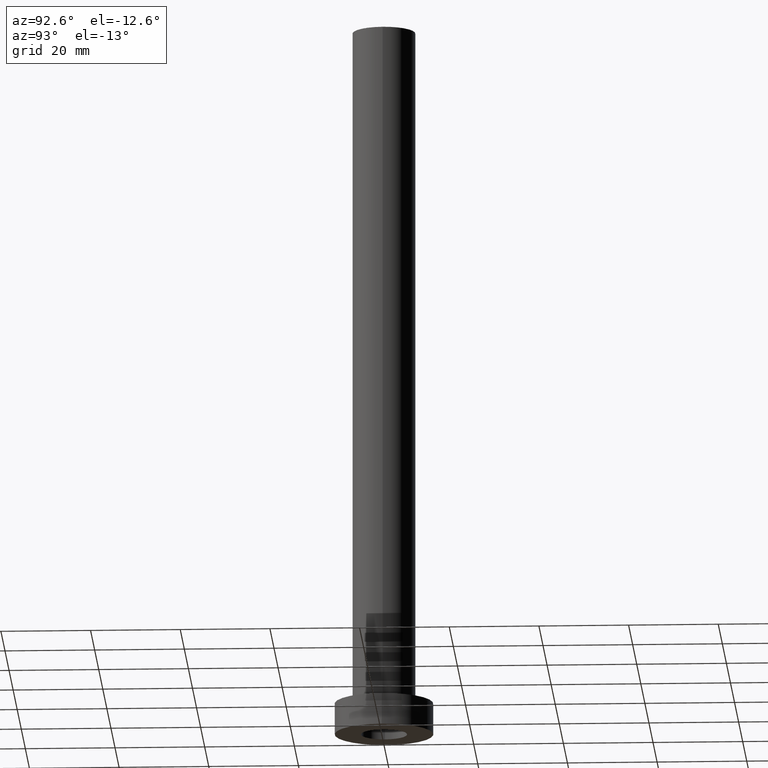
[diagram: clean part render]
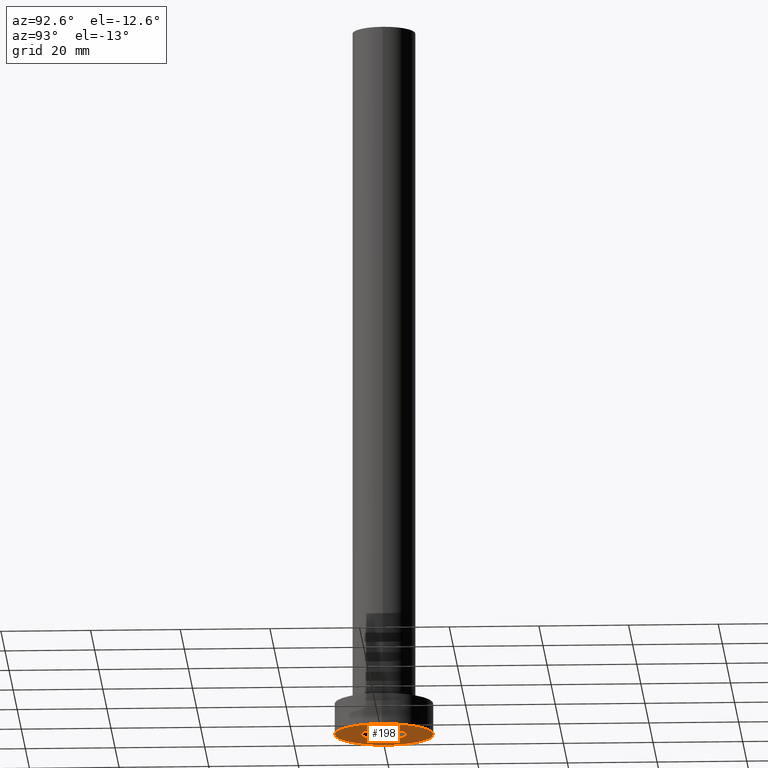
[diagram: same view with one face highlighted and labeled with its STEP entity id]
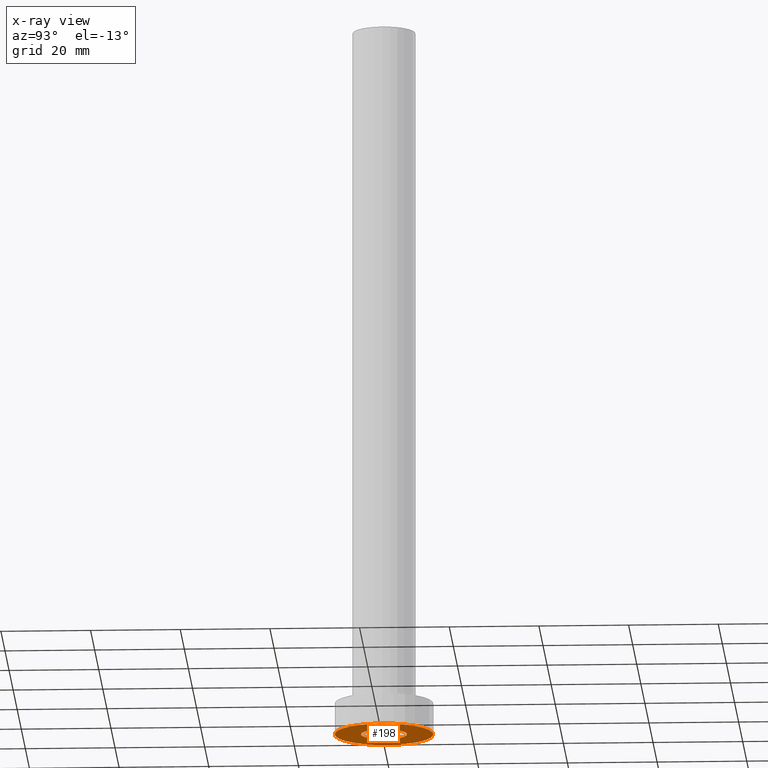
[diagram: x-ray of the same camera — body ghosted, the highlighted face saturated]
A machine part, auxiliary view. The second image highlights one B-rep face of the part: STEP entity #198.
The next image is the same camera in x-ray: the body ghosted, the highlighted face saturated — about 0% of this face is hidden behind the body in this view.
In plain terms, the highlighted planar face has unit normal (0, 0, 1).
Its self-contained STEP definition (entity closure, byte-faithful):
#8 = CARTESIAN_POINT ( 'NONE',  ( 0.000000000000000000, 0.000000000000000000, 0.000000000000000000 ) ) ;
#11 = DIRECTION ( 'NONE',  ( 1.000000000000000000, 0.000000000000000000, 0.000000000000000000 ) ) ;
#13 = VERTEX_POINT ( 'NONE', #458 ) ;
#37 = EDGE_CURVE ( 'NONE', #13, #445, #455, .T. ) ;
#47 = VERTEX_POINT ( 'NONE', #136 ) ;
#74 = AXIS2_PLACEMENT_3D ( 'NONE', #225, #441, #11 ) ;
#75 = DIRECTION ( 'NONE',  ( 0.000000000000000000, 0.000000000000000000, 1.000000000000000000 ) ) ;
#81 = DIRECTION ( 'NONE',  ( 1.000000000000000000, 0.000000000000000000, 0.000000000000000000 ) ) ;
#83 = ORIENTED_EDGE ( 'NONE', *, *, #408, .F. ) ;
#96 = AXIS2_PLACEMENT_3D ( 'NONE', #130, #210, #345 ) ;
#100 = AXIS2_PLACEMENT_3D ( 'NONE', #299, #75, #81 ) ;
#130 = CARTESIAN_POINT ( 'NONE',  ( 0.000000000000000000, 0.000000000000000000, 0.000000000000000000 ) ) ;
#132 = FACE_BOUND ( 'NONE', #253, .T. ) ;
#136 = CARTESIAN_POINT ( 'NONE',  ( 11.00000000000000000, 1.347111479062088405E-15, 0.000000000000000000 ) ) ;
#138 = ORIENTED_EDGE ( 'NONE', *, *, #424, .F. ) ;
#141 = EDGE_LOOP ( 'NONE', ( #390, #83 ) ) ;
#148 = DIRECTION ( 'NONE',  ( 0.000000000000000000, 0.000000000000000000, 1.000000000000000000 ) ) ;
#153 = CARTESIAN_POINT ( 'NONE',  ( 0.000000000000000000, 0.000000000000000000, 0.000000000000000000 ) ) ;
#167 = CIRCLE ( 'NONE', #74, 5.150000000000001243 ) ;
#179 = DIRECTION ( 'NONE',  ( 1.000000000000000000, 0.000000000000000000, 0.000000000000000000 ) ) ;
#198 = ADVANCED_FACE ( 'NONE', ( #132, #343 ), #205, .F. ) ;
#205 = PLANE ( 'NONE',  #96 ) ;
#210 = DIRECTION ( 'NONE',  ( 0.000000000000000000, 0.000000000000000000, 1.000000000000000000 ) ) ;
#225 = CARTESIAN_POINT ( 'NONE',  ( 0.000000000000000000, 0.000000000000000000, 0.000000000000000000 ) ) ;
#228 = EDGE_CURVE ( 'NONE', #355, #47, #446, .T. ) ;
#240 = AXIS2_PLACEMENT_3D ( 'NONE', #153, #148, #255 ) ;
#252 = DIRECTION ( 'NONE',  ( -0.000000000000000000, -0.000000000000000000, -1.000000000000000000 ) ) ;
#253 = EDGE_LOOP ( 'NONE', ( #138, #438 ) ) ;
#255 = DIRECTION ( 'NONE',  ( 1.000000000000000000, 0.000000000000000000, 0.000000000000000000 ) ) ;
#264 = CARTESIAN_POINT ( 'NONE',  ( -5.150000000000001243, 0.000000000000000000, 0.000000000000000000 ) ) ;
#299 = CARTESIAN_POINT ( 'NONE',  ( 0.000000000000000000, 0.000000000000000000, 0.000000000000000000 ) ) ;
#304 = CIRCLE ( 'NONE', #100, 11.00000000000000000 ) ;
#343 = FACE_OUTER_BOUND ( 'NONE', #141, .T. ) ;
#345 = DIRECTION ( 'NONE',  ( 1.000000000000000000, 0.000000000000000000, -0.000000000000000000 ) ) ;
#355 = VERTEX_POINT ( 'NONE', #457 ) ;
#390 = ORIENTED_EDGE ( 'NONE', *, *, #228, .F. ) ;
#408 = EDGE_CURVE ( 'NONE', #47, #355, #304, .T. ) ;
#417 = AXIS2_PLACEMENT_3D ( 'NONE', #8, #252, #179 ) ;
#424 = EDGE_CURVE ( 'NONE', #445, #13, #167, .T. ) ;
#438 = ORIENTED_EDGE ( 'NONE', *, *, #37, .F. ) ;
#441 = DIRECTION ( 'NONE',  ( -0.000000000000000000, -0.000000000000000000, -1.000000000000000000 ) ) ;
#445 = VERTEX_POINT ( 'NONE', #264 ) ;
#446 = CIRCLE ( 'NONE', #240, 11.00000000000000000 ) ;
#455 = CIRCLE ( 'NONE', #417, 5.150000000000001243 ) ;
#457 = CARTESIAN_POINT ( 'NONE',  ( -11.00000000000000000, 0.000000000000000000, 0.000000000000000000 ) ) ;
#458 = CARTESIAN_POINT ( 'NONE',  ( 5.150000000000001243, 6.306931015608869596E-16, 0.000000000000000000 ) ) ;